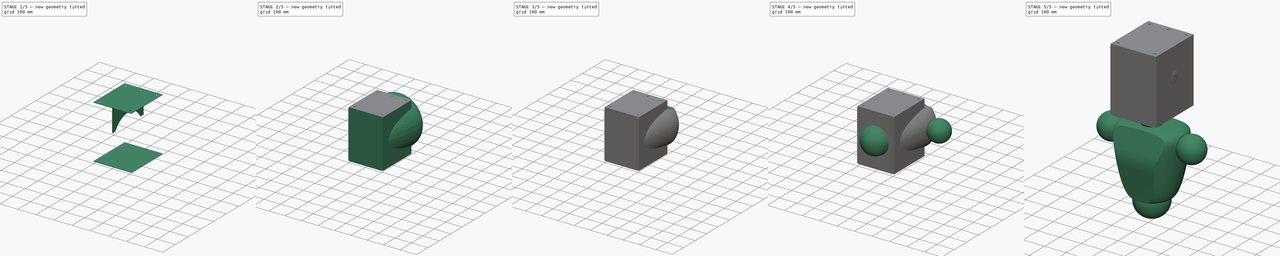
[diagram: build sequence overview — one tinted view per stage of 5, left to right]
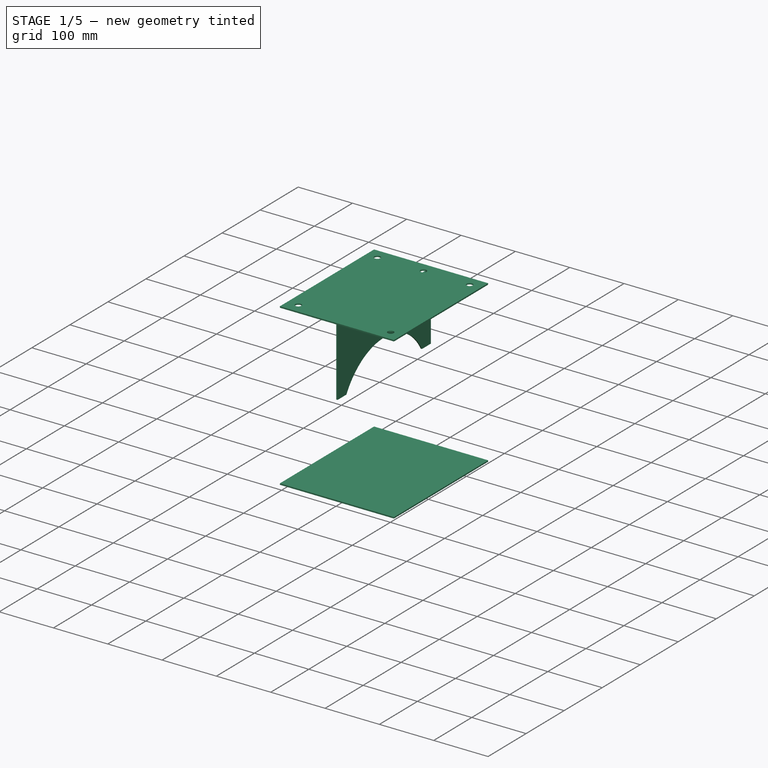
[diagram: stage 1 of 5 — iso view after this stage's code; geometry added in this stage tinted green]
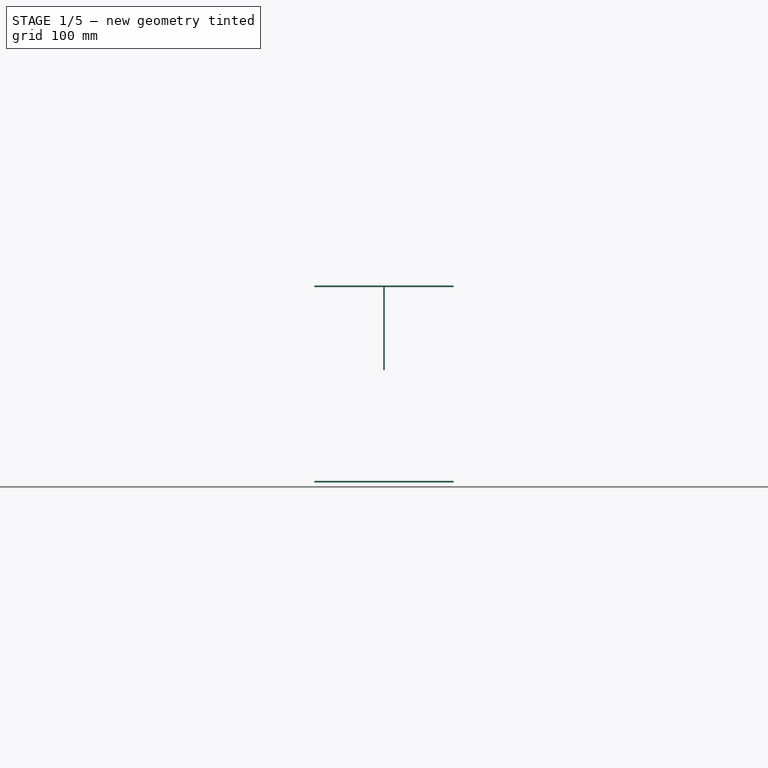
[diagram: stage 1 of 5 — front view after this stage's code; geometry added in this stage tinted green]
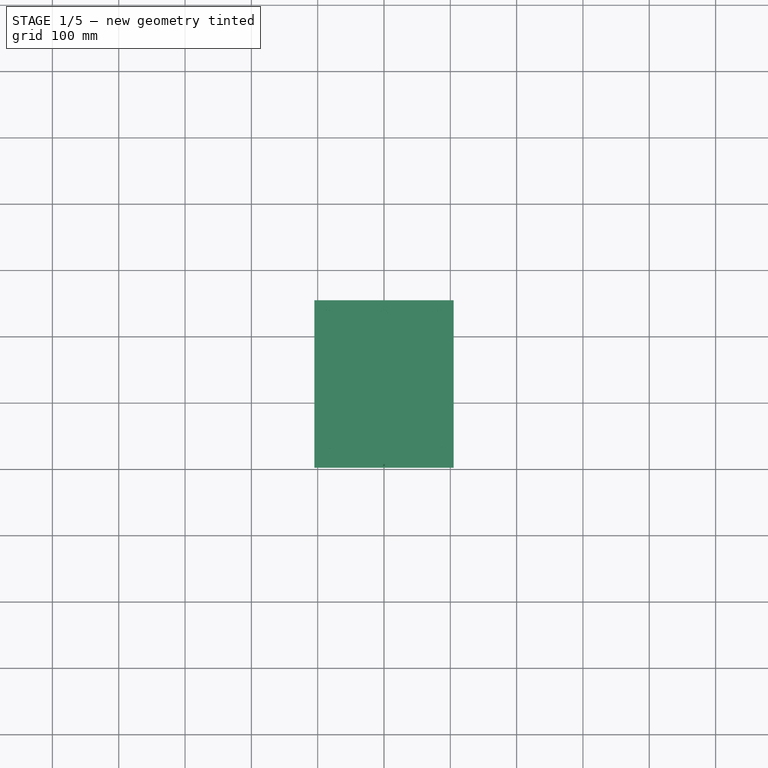
[diagram: stage 1 of 5 — top view after this stage's code; geometry added in this stage tinted green]
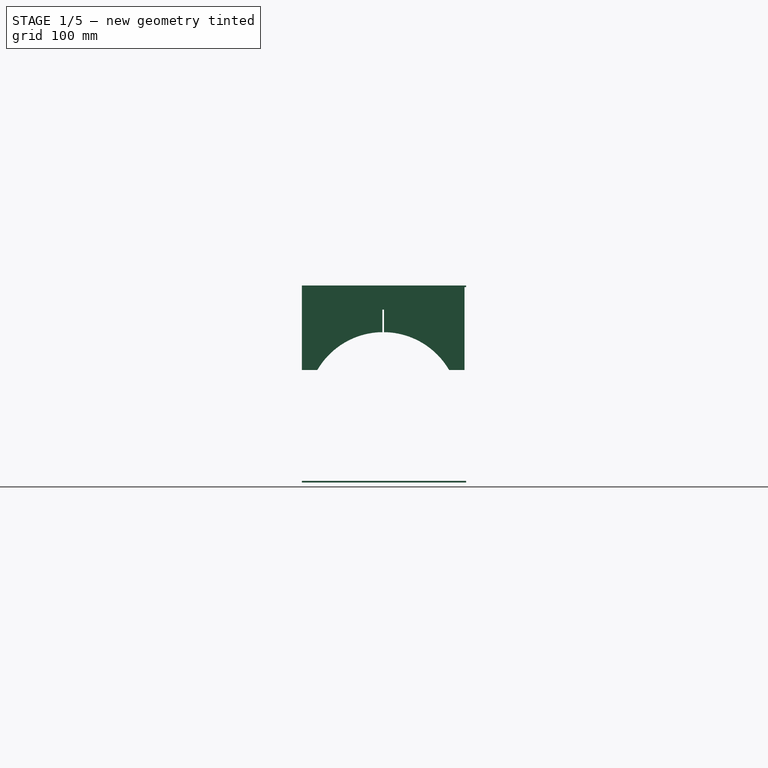
[diagram: stage 1 of 5 — right view after this stage's code; geometry added in this stage tinted green]
FCSTD DOCUMENT  (FreeCAD 1.0R39319 (Git))
Label: magnificator_02_2_4
License: CERN Open Hardware Licence permissive
LicenseURL: https://cern-ohl.web.cern.ch/
objects: Sketcher::SketchObject×19, PartDesign::Body×10, PartDesign::Pad×8, PartDesign::Plane×6, PartDesign::Revolution×5, PartDesign::CoordinateSystem×5, PartDesign::Pocket×5, PartDesign::Groove×4, PartDesign::Fillet×4, Part::MultiFuse×1, App::VarSet×1, PartDesign::SubShapeBinder×1
note: 139 computed .brp shape members not serialized (recipe doc carries the construction recipe); baked Part::Feature solids carry a one-line shape summary decoded from their .brp

FEATURE [PartDesign::Body] Body023  label="Body_right"
  AllowCompound = false
  Group = -> [DatumPlane002,Sketch072,Pad003]
  Origin = -> Origin025
  Tip = -> Pad003
FEATURE [PartDesign::Plane] DatumPlane003
  AttachmentOffset = pos=(0,0,148.5) rot=(0,0,1;0rad)
  AttachmentSupport = -> [XY_Plane026]
  Length = 258.062
  MapMode = 5
  Placement = pos=(0,0,148.5) rot=(0,0,1;0rad)
  ResizeMode = 0
  Width = 323.062
  expr: .AttachmentOffset.Base.z = VarSet.box_high_outside / 2
FEATURE [Sketcher::SketchObject] Sketch073
  ArcFitTolerance = 1e-06
  AttachmentSupport = -> [DatumPlane003]
  FullyConstrained = true
  MakeInternals = false
  MapMode = 5
  Placement = pos=(0,0,148.5) rot=(0,0,1;0rad)
  expr: Constraints[10] = VarSet.box_deep_outside
  expr: Constraints[7] = VarSet.box_wide_outside
  expr: Constraints[8] = VarSet.box_deep_outside - VarSet.foam_thick
  sketch-geometry (4):
    g0: LineSegment StartX=-105 StartY=250 StartZ=0 EndX=-105 EndY=2.4 EndZ=0
    g1: LineSegment StartX=-105 StartY=2.4 StartZ=0 EndX=105 EndY=2.4 EndZ=0
    g2: LineSegment StartX=105 StartY=2.4 StartZ=0 EndX=105 EndY=250 EndZ=0
    g3: LineSegment StartX=105 StartY=250 StartZ=0 EndX=-105 EndY=250 EndZ=0
  constraints (11):
    c: Coincident(g0,g1)
    c: Coincident(g1,g2)
    c: Coincident(g2,g3)
    c: Coincident(g3,g0)
    c: Vertical(g0)
    c: Vertical(g2)
    c: Horizontal(g3)
    c: DistanceX(g3,g3) = 210
    c: DistanceY(g2,g2) = 247.6
    c: Symmetric(g0,g1,g-2)
    c: Distance(g0,g-1) = 250
FEATURE [PartDesign::Pad] Pad004
  Direction = (0,0,1)
  Length = 2.4
  Length2 = 10
  Placement = pos=(0,0,148.5) rot=(0,0,1;0rad)
  Profile = -> Sketch073
  ReferenceAxis = -> Sketch073 [N_Axis]
  Refine = true
  Reversed = true
  Suppressed = false
  Type = 0
  expr: Length = VarSet.foam_thick
FEATURE [PartDesign::Plane] DatumPlane004
  AttachmentOffset = pos=(0,0,-148.5) rot=(0,0,1;0rad)
  AttachmentSupport = -> [XY_Plane027]
  Length = 258.062
  MapMode = 5
  Placement = pos=(0,0,-148.5) rot=(0,0,1;0rad)
  ResizeMode = 0
  Width = 323.062
  expr: .AttachmentOffset.Base.z = -VarSet.box_high_outside / 2
FEATURE [Sketcher::SketchObject] Sketch074
  ArcFitTolerance = 1e-06
  AttachmentSupport = -> [DatumPlane004]
  FullyConstrained = true
  MakeInternals = false
  MapMode = 5
  Placement = pos=(0,0,-148.5) rot=(0,0,1;0rad)
  expr: Constraints[10] = VarSet.box_deep_outside
  expr: Constraints[7] = VarSet.box_wide_outside
  expr: Constraints[8] = VarSet.box_deep_outside - VarSet.foam_thick
  sketch-geometry (4):
    g0: LineSegment StartX=-105 StartY=250 StartZ=0 EndX=-105 EndY=2.4 EndZ=0
    g1: LineSegment StartX=-105 StartY=2.4 StartZ=0 EndX=105 EndY=2.4 EndZ=0
    g2: LineSegment StartX=105 StartY=2.4 StartZ=0 EndX=105 EndY=250 EndZ=0
    g3: LineSegment StartX=105 StartY=250 StartZ=0 EndX=-105 EndY=250 EndZ=0
  constraints (11):
    c: Coincident(g0,g1)
    c: Coincident(g1,g2)
    c: Coincident(g2,g3)
    c: Coincident(g3,g0)
    c: Vertical(g0)
    c: Vertical(g2)
    c: Horizontal(g3)
    c: DistanceX(g3,g3) = 210
    c: DistanceY(g0,g0) = 247.6
    c: Symmetric(g0,g1,g-2)
    c: DistanceY(g-1,g0) = 250
FEATURE [PartDesign::Pad] Pad005
  Direction = (0,0,1)
  Length = 2.4
  Length2 = 10
  Placement = pos=(0,0,-148.5) rot=(0,0,1;0rad)
  Profile = -> Sketch074
  ReferenceAxis = -> Sketch074 [N_Axis]
  Refine = true
  Suppressed = false
  Type = 0
  expr: Length = VarSet.foam_thick
FEATURE [PartDesign::Body] Body025  label="Body_bot"
  AllowCompound = false
  Group = -> [DatumPlane004,Sketch074,Pad005,Sketch076,Pocket]
  Origin = -> Origin027
  Tip = -> Pocket
FEATURE [PartDesign::Plane] DatumPlane005
  AttachmentOffset = pos=(0,0,-125) rot=(0,0,1;0rad)
  AttachmentSupport = -> [XZ_Plane028]
  Length = 242.675
  MapMode = 5
  Placement = pos=(0,125,-2.78e-14) rot=(1,0,0;1.5708rad)
  ResizeMode = 0
  Width = 208.575
  expr: .AttachmentOffset.Base.z = -VarSet.box_deep_outside / 2
FEATURE [Sketcher::SketchObject] Sketch077
  ArcFitTolerance = 1e-06
  AttachmentSupport = -> [DatumPlane005]
  FullyConstrained = true
  MakeInternals = false
  MapMode = 5
  Placement = pos=(0,125,-2.78e-14) rot=(1,0,0;1.5708rad)
  expr: Constraints[1] = VarSet.box_wide_outside - VarSet.foam_thick - VarSet.foam_thick
  expr: Constraints[29] = VarSet.foam_thick
  expr: Constraints[2] = VarSet.box_high_outside / 2 - VarSet.foam_thick
  sketch-geometry (13):
    g0: LineSegment StartX=-102.6 StartY=146.1 StartZ=0 EndX=-1.2 EndY=146.1 EndZ=0
    g1: LineSegment StartX=-102.6 StartY=146.1 StartZ=0 EndX=-102.6 EndY=21.1 EndZ=0
    g2: LineSegment StartX=102.6 StartY=146.1 StartZ=0 EndX=102.6 EndY=21.1 EndZ=0
    g3: ArcOfCircle CenterX=8e-16 CenterY=-16.6524 CenterZ=0 NormalX=0 NormalY=0 NormalZ=1 AngleXU=0 Radius=100 StartAngle=0.38712 EndAngle=1.2454
    g4: LineSegment StartX=-102.6 StartY=21.1 StartZ=0 EndX=-92.6 EndY=21.1 EndZ=0
    g5: LineSegment StartX=102.6 StartY=21.1 StartZ=0 EndX=92.6 EndY=21.1 EndZ=0
    g6: LineSegment StartX=-31.9686 StartY=78.1 StartZ=0 EndX=31.9686 EndY=78.1 EndZ=0
    g7: ArcOfCircle CenterX=8e-16 CenterY=-16.6524 CenterZ=0 NormalX=0 NormalY=0 NormalZ=1 AngleXU=0 Radius=100 StartAngle=1.89619 EndAngle=2.75447
    g8: LineSegment StartX=-1.2 StartY=146.1 StartZ=0 EndX=-1.2 EndY=112.1 EndZ=0
    g9: LineSegment StartX=-1.2 StartY=112.1 StartZ=0 EndX=1.2 EndY=112.1 EndZ=0
    g10: LineSegment StartX=1.2 StartY=112.1 StartZ=0 EndX=1.2 EndY=146.1 EndZ=0
    g11: LineSegment StartX=1.2 StartY=146.1 StartZ=0 EndX=102.6 EndY=146.1 EndZ=0
    g12: LineSegment [constr] StartX=-1.2 StartY=112.1 StartZ=0 EndX=-1.2 EndY=78.1 EndZ=0
  constraints (40):
    c: Symmetric(g0,g11,g-2)
    c: DistanceX(g0,g11) = 205.2
    c: Distance(g0,g-1) = 146.1
    c: Distance(g1) = 125
    c: Coincident(g1,g0)
    c: Vertical(g1)
    c: Coincident(g2,g11)
    c: Vertical(g2)
    c: Equal(g2,g1)
    c: Radius(g3) = 100
    c: Coincident(g4,g1)
    c: Coincident(g4,g7)
    c: Coincident(g5,g2)
    c: Coincident(g5,g3)
    c: Horizontal(g5)
    c: Horizontal(g4)
    c: Equal(g4,g5)
    c: Distance(g4,g4) = 10
    c: Horizontal(g6)
    c: PointOnObject(g6,g7)
    c: Equal(g3,g7)
    c: Coincident(g3,g6)
    c: PointOnObject(g7,g6)
    c: Coincident(g3,g7)
    c: Coincident(g8,g9)
    c: Coincident(g9,g10)
    c: Vertical(g8)
    c: Vertical(g10)
    c: PointOnObject(g10,g11)
    c: Distance(g9,g9) = 2.4
    c: Symmetric(g8,g9,g-2)
    c: Coincident(g0,g8)
    c: PointOnObject(g11,g10)
    c: Horizontal(g0)
    c: Horizontal(g11)
    c: DistanceY(g6,g0) = 68
    c: Coincident(g12,g8)
    c: PointOnObject(g12,g6)
    c: Vertical(g12)
    c: Equal(g12,g8)
FEATURE [PartDesign::Pad] Pad006
  Direction = (0,-1,2e-16)
  Length = 2.4
  Length2 = 10
  Midplane = true
  Placement = pos=(0,125,-2.78e-14) rot=(1,0,0;1.5708rad)
  Profile = -> Sketch077
  ReferenceAxis = -> Sketch077 [N_Axis]
  Refine = true
  Suppressed = false
  Type = 0
  expr: Length = VarSet.foam_thick
FEATURE [PartDesign::Body] Body026  label="Body_braceX"
  AllowCompound = false
  Group = -> [DatumPlane005,Sketch077,Pad006]
  Origin = -> Origin028
  Tip = -> Pad006
FEATURE [PartDesign::SubShapeBinder] Binder
  BindCopyOnChange = 0
  BindMode = 0
  ClaimChildren = false
  Context = -> Body027 [Binder.]
  Fuse = false
  MakeFace = true
  OffsetFill = false
  OffsetIntersection = false
  OffsetJoinType = 0
  OffsetOpenResult = false
  PartialLoad = false
  Refine = true
  Relative = true
  Support = -> [Body026]
  _Version = 2
FEATURE [Sketcher::SketchObject] Sketch078
  ArcFitTolerance = 1e-06
  AttachmentSupport = -> [YZ_Plane029]
  ExternalGeometry = -> [Binder]
  FullyConstrained = true
  MakeInternals = false
  MapMode = 5
  Placement = pos=(0,0,0) rot=(0.57735,0.57735,0.57735;2.0944rad)
  expr: Constraints[1] = VarSet.box_deep_outside - VarSet.foam_thick - VarSet.foam_thick
  expr: Constraints[2] = VarSet.box_high_outside / 2 - VarSet.foam_thick
  expr: Constraints[31] = VarSet.foam_thick
  expr: Constraints[3] = VarSet.box_deep_outside - VarSet.foam_thick
  sketch-geometry (12):
    g0: LineSegment StartX=2.4 StartY=146.1 StartZ=0 EndX=247.6 EndY=146.1 EndZ=0
    g1: LineSegment StartX=247.6 StartY=146.1 StartZ=0 EndX=247.6 EndY=21.1 EndZ=0
    g2: LineSegment StartX=2.4 StartY=146.1 StartZ=0 EndX=2.4 EndY=21.1 EndZ=0
    g3: ArcOfCircle CenterX=125 CenterY=-36.7913 CenterZ=0 NormalX=0 NormalY=0 NormalZ=1 AngleXU=0 Radius=115 StartAngle=0.527532 EndAngle=1.5273
    g4: LineSegment StartX=25.634 StartY=21.1 StartZ=0 EndX=2.4 EndY=21.1 EndZ=0
    g5: LineSegment StartX=247.6 StartY=21.1 StartZ=0 EndX=224.366 EndY=21.1 EndZ=0
    g6: LineSegment StartX=120 StartY=78.1 StartZ=0 EndX=123.8 EndY=78.1 EndZ=0
    g7: ArcOfCircle CenterX=125 CenterY=-36.7913 CenterZ=0 NormalX=0 NormalY=0 NormalZ=1 AngleXU=0 Radius=115 StartAngle=1.61429 EndAngle=2.61406
    g8: LineSegment StartX=126.2 StartY=78.1 StartZ=0 EndX=126.2 EndY=112.1 EndZ=0
    g9: LineSegment StartX=126.2 StartY=112.1 StartZ=0 EndX=123.8 EndY=112.1 EndZ=0
    g10: LineSegment StartX=123.8 StartY=112.1 StartZ=0 EndX=123.8 EndY=78.1 EndZ=0
    g11: LineSegment StartX=126.2 StartY=78.1 StartZ=0 EndX=130 EndY=78.1 EndZ=0
  constraints (38):
    c: Horizontal(g0)
    c: DistanceX(g0,g0) = 245.2
    c: DistanceY(g-1,g0) = 146.1
    c: Distance(g0,g-2) = 247.6
    c: Coincident(g1,g0)
    c: Vertical(g1)
    c: Coincident(g2,g0)
    c: Vertical(g2)
    c: Equal(g2,g1)
    c: DistanceY(g2,g2) = 125
    c: Radius(g3) = 115
    c: Coincident(g4,g7)
    c: Coincident(g4,g2)
    c: Coincident(g5,g1)
    c: Coincident(g5,g3)
    c: Horizontal(g5)
    c: Horizontal(g4)
    c: Equal(g4,g5)
    c: Horizontal(g6)
    c: PointOnObject(g6,g7)
    c: Equal(g3,g7)
    c: Coincident(g3,g11)
    c: PointOnObject(g7,g6)
    c: Coincident(g3,g7)
    c: Coincident(g8,g9)
    c: Coincident(g9,g10)
    c: Horizontal(g9)
    c: Vertical(g8)
    c: Vertical(g10)
    c: PointOnObject(g8,g11)
    c: PointOnObject(g9,g-3)
    c: Distance(g9,g9) = 2.4
    c: PointOnObject(g11,g8)
    c: Coincident(g6,g-4)
    c: Horizontal(g11)
    c: Coincident(g6,g10)
    c: Equal(g10,g8)
    c: DistanceX(g6,g3) = 10
FEATURE [PartDesign::Pad] Pad007
  Direction = (1,0,0)
  Length = 2.4
  Length2 = 10
  Midplane = true
  Placement = pos=(0,0,0) rot=(1,1,1;2.0944rad)
  Profile = -> Sketch078
  ReferenceAxis = -> Sketch078 [N_Axis]
  Refine = true
  Suppressed = false
  Type = 0
  expr: Length = VarSet.foam_thick
FEATURE [PartDesign::Body] Body027  label="Body_braceY"
  AllowCompound = false
  Group = -> [Sketch078,Pad007,Binder]
  Origin = -> Origin029
  Tip = -> Pad007
FEATURE [Sketcher::SketchObject] Sketch079
  ArcFitTolerance = 1e-06
  AttachmentSupport = -> [Pad004]
  ExternalGeometry = -> [Pad004]
  FullyConstrained = true
  MakeInternals = false
  MapMode = 5
  Placement = pos=(0,0,148.5) rot=(0,0,1;0rad)
  sketch-geometry (8):
    g0: Circle CenterX=-85 CenterY=230 CenterZ=0 NormalX=0 NormalY=0 NormalZ=1 AngleXU=0 Radius=5.5
    g1: Circle CenterX=0 CenterY=230 CenterZ=0 NormalX=0 NormalY=0 NormalZ=1 AngleXU=0 Radius=5.5
    g2: Circle CenterX=85 CenterY=230 CenterZ=0 NormalX=0 NormalY=0 NormalZ=1 AngleXU=0 Radius=5.5
    g3: Circle CenterX=85 CenterY=22.4 CenterZ=0 NormalX=0 NormalY=0 NormalZ=1 AngleXU=0 Radius=5.5
    g4: Circle CenterX=-85 CenterY=22.4 CenterZ=0 NormalX=0 NormalY=0 NormalZ=1 AngleXU=0 Radius=5.5
    g5: LineSegment [constr] StartX=-85 StartY=230 StartZ=0 EndX=-85 EndY=250 EndZ=0
    g6: LineSegment [constr] StartX=-85 StartY=230 StartZ=0 EndX=-105 EndY=230 EndZ=0
    g7: LineSegment [constr] StartX=-85 StartY=22.4 StartZ=0 EndX=-85 EndY=2.4 EndZ=0
  constraints (22):
    c: PointOnObject(g1,g-2)
    c: Equal(g4,g3)
    c: Equal(g3,g2)
    c: Equal(g2,g1)
    c: Equal(g1,g0)
    c: Diameter(g0) = 11
    c: Horizontal(g0,g1)
    c: Symmetric(g0,g2,g-2)
    c: Symmetric(g4,g3,g-2)
    c: Vertical(g4,g0)
    c: Coincident(g5,g0)
    c: PointOnObject(g5,g-3)
    c: Vertical(g5)
    c: Coincident(g6,g0)
    c: PointOnObject(g6,g-4)
    c: Horizontal(g6)
    c: Equal(g5,g6)
    c: Coincident(g7,g4)
    c: Vertical(g7)
    c: Equal(g7,g5)
    c: DistanceY(g5,g5) = 20
    c: Horizontal(g7,g-4)
FEATURE [PartDesign::Pocket] Pocket012
  BaseFeature = -> Pad004
  Direction = (0,0,-1)
  Length = 5
  Length2 = 5
  Placement = pos=(0,0,148.5) rot=(0,0,1;0rad)
  Profile = -> Sketch079
  ReferenceAxis = -> Sketch079 [N_Axis]
  Refine = true
  Suppressed = false
  Type = 1
FEATURE [PartDesign::Body] Body024  label="Body_top"
  AllowCompound = false
  Group = -> [DatumPlane003,Sketch073,Pad004,Sketch079,Pocket012]
  Origin = -> Origin026
  Tip = -> Pocket012
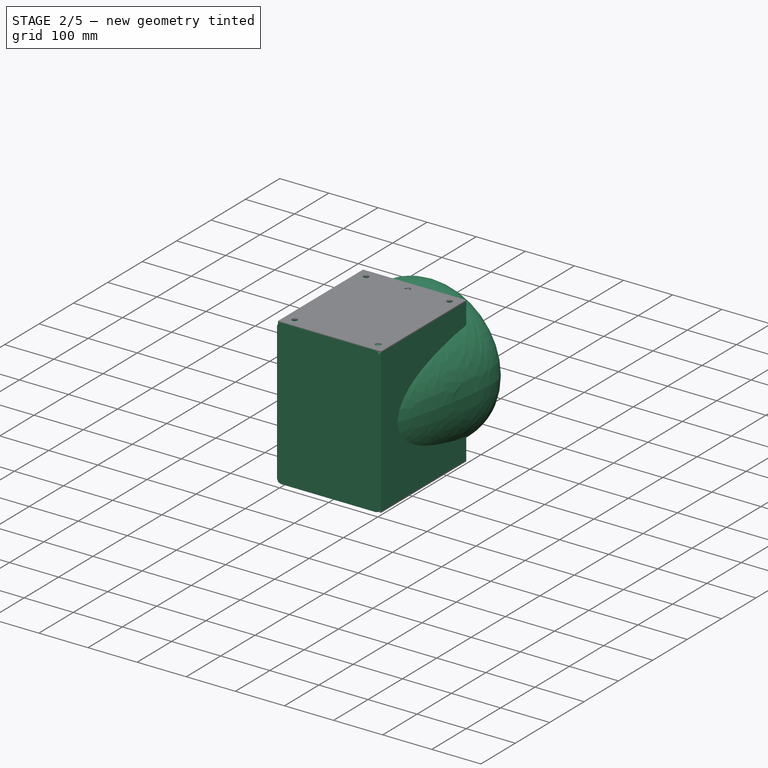
[diagram: stage 2 of 5 — iso view after this stage's code; geometry added in this stage tinted green]
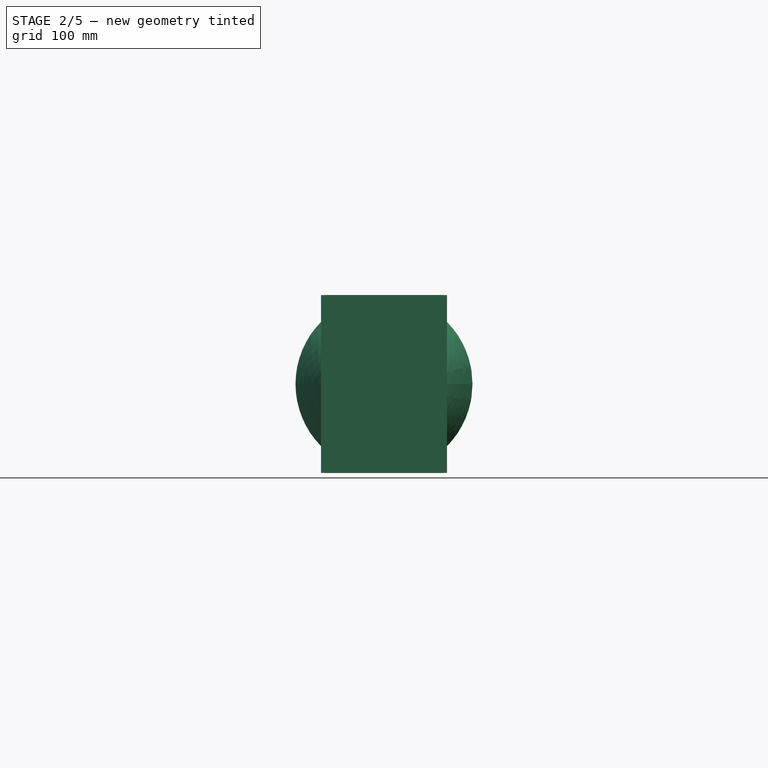
[diagram: stage 2 of 5 — front view after this stage's code; geometry added in this stage tinted green]
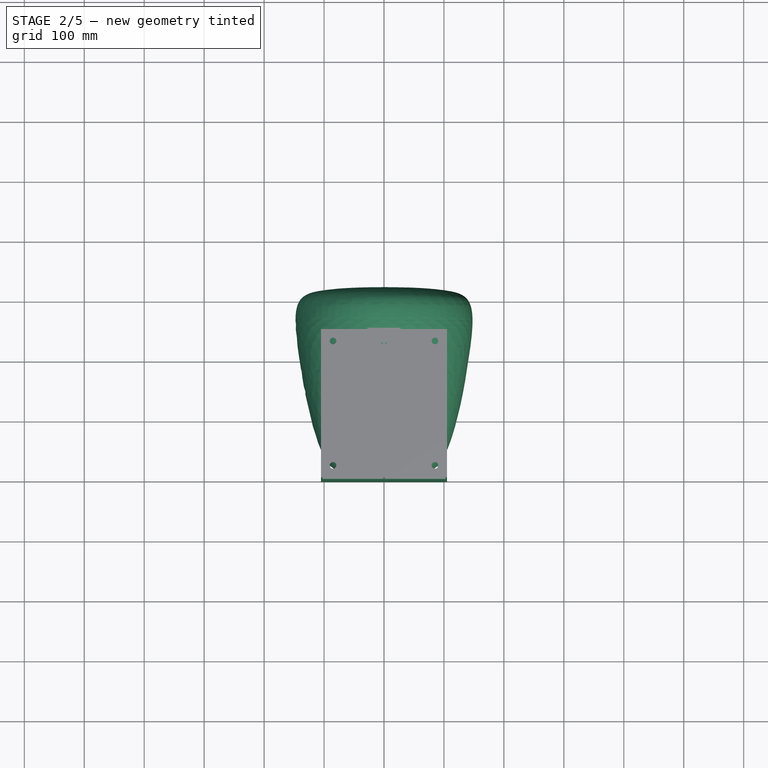
[diagram: stage 2 of 5 — top view after this stage's code; geometry added in this stage tinted green]
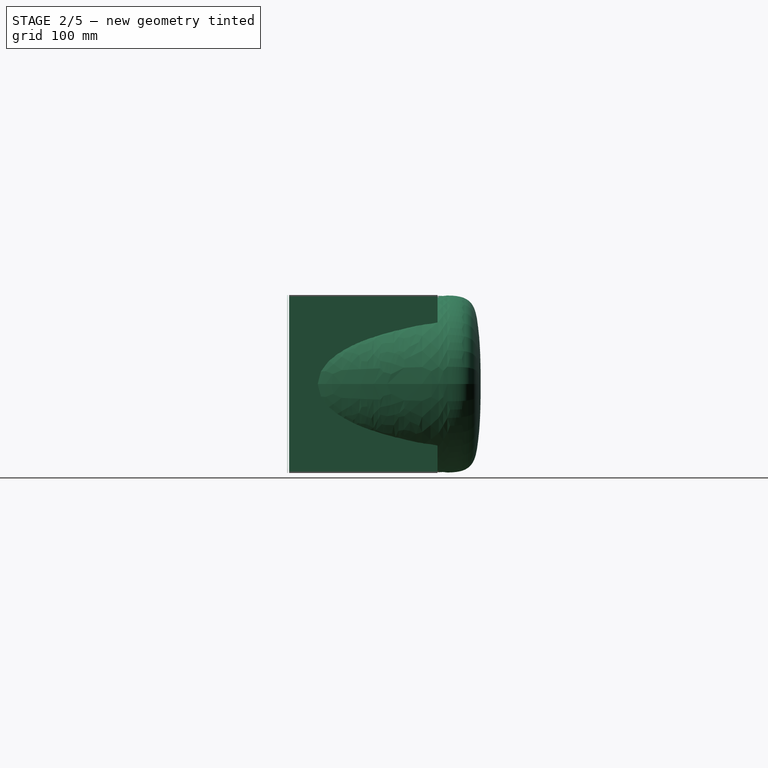
[diagram: stage 2 of 5 — right view after this stage's code; geometry added in this stage tinted green]
FEATURE [PartDesign::CoordinateSystem] Local_CS033  label="Head/Neck LCS"
  AttacherType = Attacher::AttachEngine3D
  AttachmentSupport = -> [Revolution033]
  MapMode = 2
FEATURE [Sketcher::SketchObject] Sketch062
  ArcFitTolerance = 0
  AttachmentSupport = -> [XY_Plane022]
  FullyConstrained = true
  MakeInternals = false
  MapMode = 5
  sketch-geometry (18):
    g0: LineSegment StartX=0 StartY=322.019 StartZ=0 EndX=0 EndY=20.3719 EndZ=0
    g1-g9: Circle [constr] x9 (B-spline internal-alignment scaffolding for g10; pole/knot coordinates omitted)
    g10: BSplineCurve PolesCount=9 KnotsCount=7 Degree=3 IsPeriodic=0
    g11-g17: GeomPoint [constr] x7 (B-spline internal-alignment scaffolding for g10; pole/knot coordinates omitted)
  constraints (12):
    c: Vertical(g0)
    c: PointOnObject(g0,g-2)
    c: Weight(g1) = 1
    c: Coincident(g10,g0)
    c: Equal(g1, g2-g9) x8
    c: Coincident(g10,g0)
    c: InternalAlignment(g1-g9 -> g10) x9
    c: InternalAlignment(g11-g17 -> g10) x7
    c: Horizontal(g0,g2)
    c: Horizontal(g0,g8)
    c: Block(g0)
    c: Block(g10)
FEATURE [PartDesign::Revolution] Revolution034  label="Base shape"
  Angle = 360
  Angle2 = 60
  Axis = (0,1,0)
  Base = (0,0,0)
  Profile = -> Sketch062
  ReferenceAxis = -> Sketch062 [V_Axis]
  Reversed = true
  Suppressed = false
  Type = 0
FEATURE [Sketcher::SketchObject] Sketch
  ArcFitTolerance = 1e-06
  AttachmentSupport = -> [XZ_Plane]
  FullyConstrained = true
  MakeInternals = false
  MapMode = 5
  Placement = pos=(0,0,0) rot=(1,0,0;1.5708rad)
  sketch-geometry (10):
    g0: LineSegment StartX=-95 StartY=-148.5 StartZ=0 EndX=95 EndY=-148.5 EndZ=0
    g1: LineSegment StartX=105 StartY=-138.5 StartZ=0 EndX=105 EndY=138.5 EndZ=0
    g2: LineSegment StartX=95 StartY=148.5 StartZ=0 EndX=-95 EndY=148.5 EndZ=0
    g3: LineSegment StartX=-105 StartY=138.5 StartZ=0 EndX=-105 EndY=-138.5 EndZ=0
    g4: ArcOfCircle CenterX=-95 CenterY=-138.5 CenterZ=0 NormalX=0 NormalY=0 NormalZ=1 AngleXU=0 Radius=10 StartAngle=3.14159 EndAngle=4.71239
    g5: ArcOfCircle CenterX=95 CenterY=-138.5 CenterZ=0 NormalX=0 NormalY=0 NormalZ=1 AngleXU=0 Radius=10 StartAngle=4.71239 EndAngle=6.28319
    g6: ArcOfCircle CenterX=95 CenterY=138.5 CenterZ=0 NormalX=0 NormalY=0 NormalZ=1 AngleXU=0 Radius=10 StartAngle=0 EndAngle=1.5708
    g7: ArcOfCircle CenterX=-95 CenterY=138.5 CenterZ=0 NormalX=0 NormalY=0 NormalZ=1 AngleXU=0 Radius=10 StartAngle=1.5708 EndAngle=3.14159
    g8: GeomPoint [constr] X=105 Y=148.5 Z=0
    g9: GeomPoint [constr] X=0 Y=0 Z=0
  constraints (22):
    c: Tangent(g0,g4) = -1.5708
    c: Tangent(g0,g5) = -1.5708
    c: Tangent(g1,g5) = -1.5708
    c: Tangent(g1,g6) = -1.5708
    c: Tangent(g2,g6) = -1.5708
    c: Tangent(g2,g7) = -1.5708
    c: Tangent(g3,g7) = -1.5708
    c: Tangent(g3,g4) = -1.5708
    c: Horizontal(g0)
    c: Horizontal(g2)
    c: Vertical(g1)
    c: Vertical(g3)
    c: Equal(g4,g5)
    c: Equal(g5,g6)
    c: Equal(g6,g7)
    c: Symmetric(g2,g0,g9)
    c: PointOnObject(g8,g1)
    c: PointOnObject(g8,g2)
    c: Distance(g1,g3) = 210
    c: Distance(g0,g2) = 297
    c: Radius(g5) = 10
    c: Coincident(g9,g-1)
FEATURE [PartDesign::Pad] Pad
  Direction = (0,-1,2e-16)
  Length = 0.5
  Length2 = 10
  Placement = pos=(0,0,0) rot=(1,0,0;1.5708rad)
  Profile = -> Sketch
  ReferenceAxis = -> Sketch [N_Axis]
  Refine = true
  Suppressed = false
  Type = 0
FEATURE [PartDesign::Body] Body  label="Fresnel_A4"
  AllowCompound = false
  Group = -> [Sketch,Pad]
  Origin = -> Origin
  Tip = -> Pad
FEATURE [PartDesign::Plane] DatumPlane
  AttachmentOffset = pos=(0,0,-250) rot=(0,0,1;0rad)
  AttachmentSupport = -> [XZ_Plane023]
  Length = 259.543
  MapMode = 5
  Placement = pos=(0,250,-5.55e-14) rot=(1,0,0;1.5708rad)
  ResizeMode = 0
  Width = 341.743
  expr: .AttachmentOffset.Base.z = -VarSet.box_deep_outside
FEATURE [Sketcher::SketchObject] Sketch070
  ArcFitTolerance = 1e-06
  AttachmentSupport = -> [DatumPlane]
  FullyConstrained = true
  MakeInternals = false
  MapMode = 5
  Placement = pos=(0,250,-5.55e-14) rot=(1,0,0;1.5708rad)
  expr: Constraints[10] = VarSet.box_high_outside - VarSet.foam_thick - VarSet.foam_thick
  expr: Constraints[9] = VarSet.box_wide_outside
  sketch-geometry (5):
    g0: LineSegment StartX=-105 StartY=-146.1 StartZ=0 EndX=105 EndY=-146.1 EndZ=0
    g1: LineSegment StartX=105 StartY=-146.1 StartZ=0 EndX=105 EndY=146.1 EndZ=0
    g2: LineSegment StartX=105 StartY=146.1 StartZ=0 EndX=-105 EndY=146.1 EndZ=0
    g3: LineSegment StartX=-105 StartY=146.1 StartZ=0 EndX=-105 EndY=-146.1 EndZ=0
    g4: GeomPoint [constr] X=0 Y=0 Z=0
  constraints (12):
    c: Coincident(g0,g1)
    c: Coincident(g1,g2)
    c: Coincident(g2,g3)
    c: Coincident(g3,g0)
    c: Horizontal(g0)
    c: Horizontal(g2)
    c: Vertical(g1)
    c: Vertical(g3)
    c: Symmetric(g2,g0,g4)
    c: Distance(g1,g3) = 210
    c: Distance(g0,g2) = 292.2
    c: Coincident(g4,g-1)
FEATURE [App::VarSet] VarSet
  box_deep_outside = 250
  box_high_outside = 297
  box_wide_outside = 210
  foam_thick = 2.4
FEATURE [PartDesign::Pad] Pad001
  Direction = (0,-1,2e-16)
  Length = 2.4
  Length2 = 10
  Placement = pos=(0,250,-5.55e-14) rot=(1,0,0;1.5708rad)
  Profile = -> Sketch070
  ReferenceAxis = -> Sketch070 [N_Axis]
  Refine = true
  Suppressed = false
  Type = 0
  expr: Length = VarSet.foam_thick
FEATURE [PartDesign::Body] Body021  label="Body_back"
  AllowCompound = false
  Group = -> [DatumPlane,Sketch070,Pad001]
  Origin = -> Origin023
  Tip = -> Pad001
FEATURE [PartDesign::Plane] DatumPlane001
  AttachmentOffset = pos=(0,0,105) rot=(0,0,1;0rad)
  AttachmentSupport = -> [YZ_Plane024]
  Length = 329.046
  MapMode = 5
  Placement = pos=(105,0,0) rot=(0.57735,0.57735,0.57735;2.0944rad)
  ResizeMode = 0
  Width = 348.646
  expr: .AttachmentOffset.Base.z = VarSet.box_wide_outside / 2
FEATURE [Sketcher::SketchObject] Sketch071
  ArcFitTolerance = 1e-06
  AttachmentSupport = -> [DatumPlane001]
  FullyConstrained = true
  MakeInternals = false
  MapMode = 5
  Placement = pos=(105,0,0) rot=(0.57735,0.57735,0.57735;2.0944rad)
  expr: Constraints[10] = VarSet.box_deep_outside - VarSet.foam_thick
  expr: Constraints[7] = VarSet.box_deep_outside - VarSet.foam_thick - VarSet.foam_thick
  expr: Constraints[8] = VarSet.box_high_outside - VarSet.foam_thick - VarSet.foam_thick
  sketch-geometry (4):
    g0: LineSegment StartX=247.6 StartY=146.1 StartZ=0 EndX=2.4 EndY=146.1 EndZ=0
    g1: LineSegment StartX=2.4 StartY=146.1 StartZ=0 EndX=2.4 EndY=-146.1 EndZ=0
    g2: LineSegment StartX=2.4 StartY=-146.1 StartZ=0 EndX=247.6 EndY=-146.1 EndZ=0
    g3: LineSegment StartX=247.6 StartY=-146.1 StartZ=0 EndX=247.6 EndY=146.1 EndZ=0
  constraints (11):
    c: Coincident(g0,g1)
    c: Coincident(g1,g2)
    c: Coincident(g2,g3)
    c: Coincident(g3,g0)
    c: Horizontal(g0)
    c: Horizontal(g2)
    c: Vertical(g3)
    c: DistanceX(g2,g2) = 245.2
    c: DistanceY(g1,g1) = 292.2
    c: Symmetric(g0,g1,g-1)
    c: Distance(g2,g-2) = 247.6
FEATURE [PartDesign::Pad] Pad002
  Direction = (1,0,0)
  Length = 2.4
  Length2 = 10
  Placement = pos=(105,0,0) rot=(0.57735,0.57735,0.57735;2.0944rad)
  Profile = -> Sketch071
  ReferenceAxis = -> Sketch071 [N_Axis]
  Refine = true
  Reversed = true
  Suppressed = false
  Type = 0
  expr: Length = VarSet.foam_thick
FEATURE [PartDesign::Body] Body022  label="Body_left"
  AllowCompound = false
  Group = -> [DatumPlane001,Sketch071,Pad002]
  Origin = -> Origin024
  Tip = -> Pad002
FEATURE [PartDesign::Plane] DatumPlane002
  AttachmentOffset = pos=(0,0,-105) rot=(0,0,1;0rad)
  AttachmentSupport = -> [YZ_Plane025]
  Length = 329.046
  MapMode = 5
  Placement = pos=(-105,0,0) rot=(0.57735,0.57735,0.57735;2.0944rad)
  ResizeMode = 0
  Width = 348.646
  expr: .AttachmentOffset.Base.z = -VarSet.box_wide_outside / 2
FEATURE [Sketcher::SketchObject] Sketch072
  ArcFitTolerance = 1e-06
  AttachmentSupport = -> [DatumPlane002]
  FullyConstrained = true
  MakeInternals = false
  MapMode = 5
  Placement = pos=(-105,0,0) rot=(0.57735,0.57735,0.57735;2.0944rad)
  expr: Constraints[10] = VarSet.box_deep_outside - VarSet.foam_thick
  expr: Constraints[7] = VarSet.box_deep_outside - VarSet.foam_thick - VarSet.foam_thick
  expr: Constraints[8] = VarSet.box_high_outside - VarSet.foam_thick - VarSet.foam_thick
  sketch-geometry (4):
    g0: LineSegment StartX=2.4 StartY=146.1 StartZ=0 EndX=2.4 EndY=-146.1 EndZ=0
    g1: LineSegment StartX=2.4 StartY=-146.1 StartZ=0 EndX=247.6 EndY=-146.1 EndZ=0
    g2: LineSegment StartX=247.6 StartY=-146.1 StartZ=0 EndX=247.6 EndY=146.1 EndZ=0
    g3: LineSegment StartX=247.6 StartY=146.1 StartZ=0 EndX=2.4 EndY=146.1 EndZ=0
  constraints (11):
    c: Coincident(g0,g1)
    c: Coincident(g1,g2)
    c: Coincident(g2,g3)
    c: Coincident(g3,g0)
    c: Vertical(g2)
    c: Horizontal(g1)
    c: Horizontal(g3)
    c: DistanceX(g3,g3) = 245.2
    c: DistanceY(g0,g0) = 292.2
    c: Symmetric(g0,g0,g-1)
    c: Distance(g1,g-2) = 247.6
FEATURE [PartDesign::Pad] Pad003
  Direction = (1,0,0)
  Length = 2.4
  Length2 = 10
  Placement = pos=(-105,0,0) rot=(0.57735,0.57735,0.57735;2.0944rad)
  Profile = -> Sketch072
  ReferenceAxis = -> Sketch072 [N_Axis]
  Refine = true
  Suppressed = false
  Type = 0
  expr: Length = VarSet.foam_thick
FEATURE [Sketcher::SketchObject] Sketch076
  ArcFitTolerance = 1e-06
  AttachmentSupport = -> [Pad005]
  ExternalGeometry = -> [Pad005]
  FullyConstrained = true
  MakeInternals = false
  MapMode = 5
  Placement = pos=(0,0,-146.1) rot=(0,0,1;0rad)
  sketch-geometry (21):
    g0: LineSegment StartX=-40 StartY=20 StartZ=0 EndX=40 EndY=20 EndZ=0
    g1: LineSegment StartX=90 StartY=70 StartZ=0 EndX=90 EndY=170 EndZ=0
    g2: LineSegment StartX=40 StartY=220 StartZ=0 EndX=-40 EndY=220 EndZ=0
    g3: LineSegment StartX=-90 StartY=170 StartZ=0 EndX=-90 EndY=70 EndZ=0
    g4: ArcOfCircle CenterX=-40 CenterY=70 CenterZ=0 NormalX=0 NormalY=0 NormalZ=1 AngleXU=0 Radius=50 StartAngle=3.14159 EndAngle=4.71239
    g5: ArcOfCircle CenterX=40 CenterY=70 CenterZ=0 NormalX=0 NormalY=0 NormalZ=1 AngleXU=0 Radius=50 StartAngle=4.71239 EndAngle=6.28319
    g6: ArcOfCircle CenterX=40 CenterY=170 CenterZ=0 NormalX=0 NormalY=0 NormalZ=1 AngleXU=0 Radius=50 StartAngle=0 EndAngle=1.5708
    g7: ArcOfCircle CenterX=-40 CenterY=170 CenterZ=0 NormalX=0 NormalY=0 NormalZ=1 AngleXU=0 Radius=50 StartAngle=1.5708 EndAngle=3.14159
    g8: GeomPoint [constr] X=90 Y=220 Z=0
    g9: GeomPoint [constr] X=0 Y=120 Z=0
    g10: LineSegment [constr] StartX=-6.1e-15 StartY=250 StartZ=0 EndX=0 EndY=120 EndZ=0
    g11: LineSegment [constr] StartX=0 StartY=120 StartZ=0 EndX=0 EndY=0 EndZ=0
    g12: Circle CenterX=-85 CenterY=230 CenterZ=0 NormalX=0 NormalY=0 NormalZ=1 AngleXU=0 Radius=5.5
    g13: Circle CenterX=85 CenterY=230 CenterZ=0 NormalX=0 NormalY=0 NormalZ=1 AngleXU=0 Radius=5.5
    g14: Circle CenterX=-85 CenterY=22.4 CenterZ=0 NormalX=0 NormalY=0 NormalZ=1 AngleXU=0 Radius=5.5
    g15: Circle CenterX=85 CenterY=22.4 CenterZ=0 NormalX=0 NormalY=0 NormalZ=1 AngleXU=0 Radius=5.5
    g16: Circle CenterX=-5.2e-15 CenterY=230 CenterZ=0 NormalX=0 NormalY=0 NormalZ=1 AngleXU=0 Radius=5.5
    g17: LineSegment [constr] StartX=-85 StartY=230 StartZ=0 EndX=-85 EndY=250 EndZ=0
    g18: LineSegment [constr] StartX=-85 StartY=230 StartZ=0 EndX=-105 EndY=230 EndZ=0
    g19: LineSegment [constr] StartX=-85 StartY=22.4 StartZ=0 EndX=-85 EndY=2.4 EndZ=0
    g20: LineSegment [constr] StartX=-85 StartY=22.4 StartZ=0 EndX=-105 EndY=22.4 EndZ=0
  constraints (52):
    c: Tangent(g0,g4) = -1.5708
    c: Tangent(g0,g5) = -1.5708
    c: Tangent(g1,g5) = -1.5708
    c: Tangent(g1,g6) = -1.5708
    c: Tangent(g2,g6) = -1.5708
    c: Tangent(g2,g7) = -1.5708
    c: Tangent(g3,g7) = -1.5708
    c: Tangent(g3,g4) = -1.5708
    c: Horizontal(g0)
    c: Horizontal(g2)
    c: Vertical(g1)
    c: Vertical(g3)
    c: Equal(g4,g5)
    c: Equal(g5,g6)
    c: Equal(g6,g7)
    c: Symmetric(g2,g0,g9)
    c: PointOnObject(g8,g1)
    c: PointOnObject(g8,g2)
    c: Distance(g1,g3) = 180
    c: Distance(g0,g2) = 200
    c: Radius(g5) = 50
    c: PointOnObject(g9,g-2)
    c: Symmetric(g-3,g-3,g10)
    c: Coincident(g10,g9)
    c: Coincident(g11,g9)
    c: Coincident(g11,g-1)
    c: Distance(g11,g0) = 20
    c: PointOnObject(g16,g10)
    c: Equal(g14,g15)
    c: Equal(g15,g13)
    c: Equal(g13,g16)
    c: Equal(g16,g12)
    c: Diameter(g12) = 11
    c: Symmetric(g12,g13,g16)
    c: Vertical(g12,g14)
    c: Symmetric(g15,g14,g11)
    c: Horizontal(g12,g16)
    c: Coincident(g17,g12)
    c: PointOnObject(g17,g-3)
    c: Vertical(g17)
    c: Coincident(g18,g12)
    c: PointOnObject(g18,g-5)
    c: Horizontal(g18)
    c: Coincident(g19,g14)
    c: PointOnObject(g19,g-4)
    c: Vertical(g19)
    c: Coincident(g20,g14)
    c: PointOnObject(g20,g-5)
    c: Horizontal(g20)
    c: Equal(g19,g20)
    c: Equal(g18,g17)
    c: DistanceY(g17,g17) = 20
FEATURE [PartDesign::Pocket] Pocket
  BaseFeature = -> Pad005
  Direction = (0,0,-1)
  Length = 5
  Length2 = 5
  Placement = pos=(0,0,-148.5) rot=(0,0,1;0rad)
  Profile = -> Sketch076
  ReferenceAxis = -> Sketch076 [N_Axis]
  Refine = true
  Suppressed = false
  Type = 1
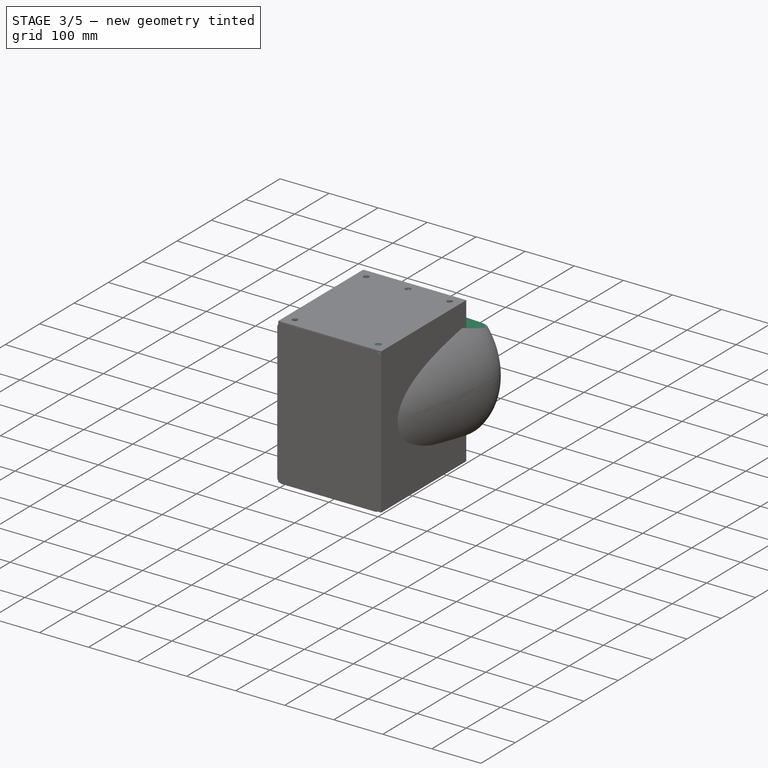
[diagram: stage 3 of 5 — iso view after this stage's code; geometry added in this stage tinted green]
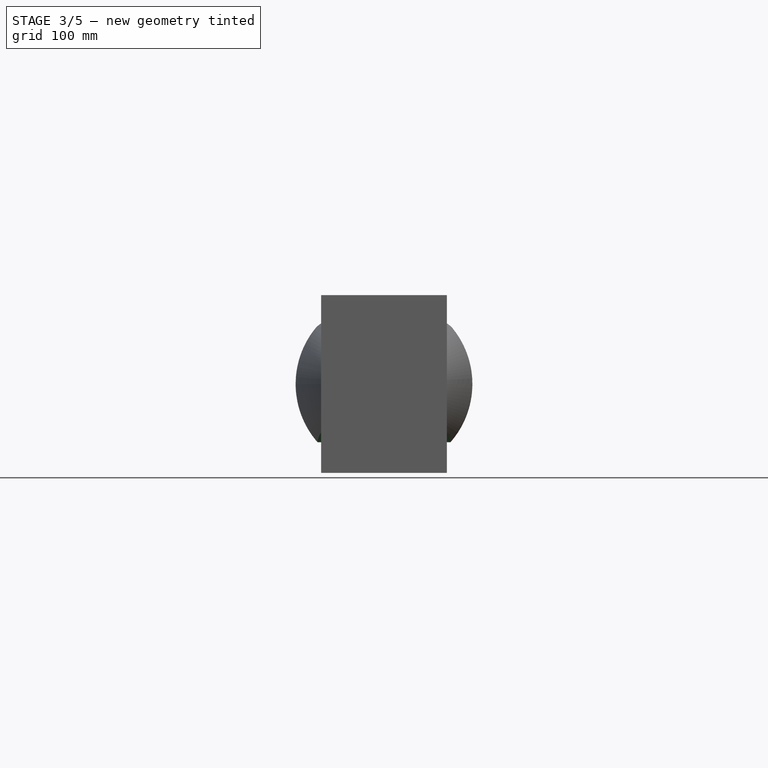
[diagram: stage 3 of 5 — front view after this stage's code; geometry added in this stage tinted green]
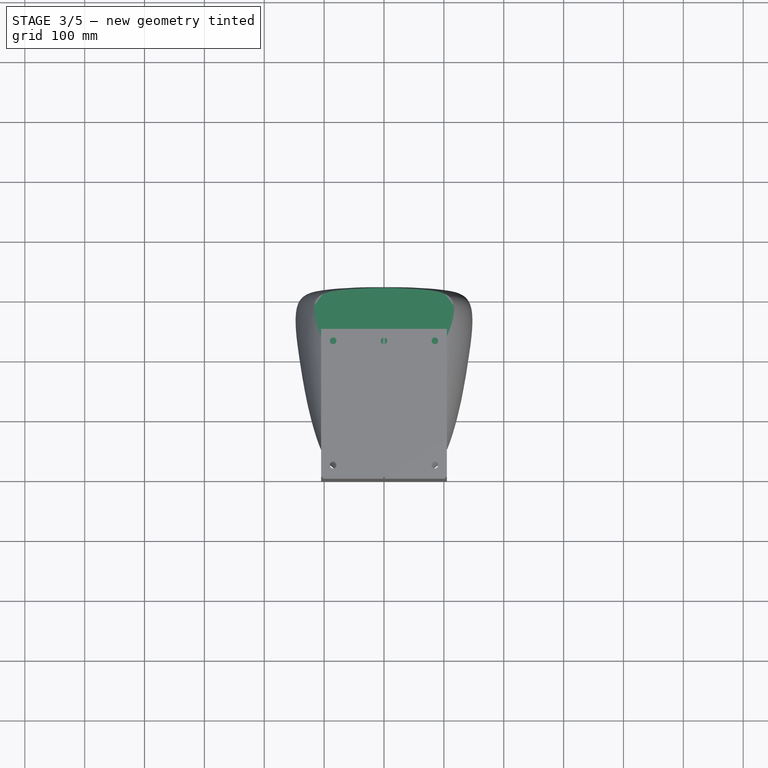
[diagram: stage 3 of 5 — top view after this stage's code; geometry added in this stage tinted green]
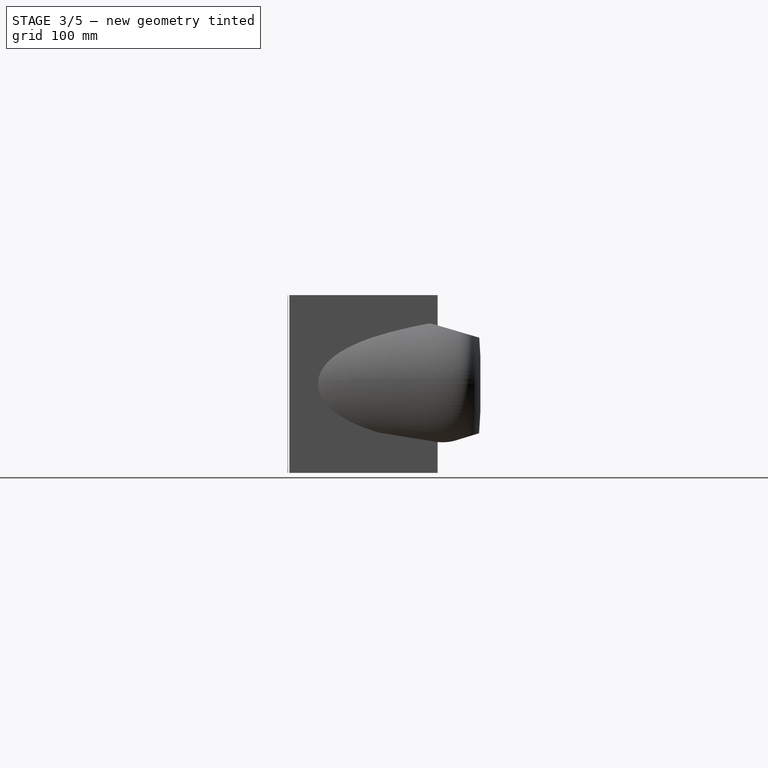
[diagram: stage 3 of 5 — right view after this stage's code; geometry added in this stage tinted green]
FEATURE [PartDesign::Body] Body019  label="Head"
  AllowCompound = false
  Group = -> [Sketch061,Revolution033,Sketch063,Groove026,Sketch064,Pocket009,Fillet027,Local_CS033]
  Origin = -> Origin021
  Placement = pos=(0,1163.06,-374.255) rot=(0,0,1;0rad)
  Tip = -> Fillet027
FEATURE [Sketcher::SketchObject] Sketch065
  ArcFitTolerance = 0
  AttachmentSupport = -> [YZ_Plane022]
  FullyConstrained = true
  MakeInternals = false
  MapMode = 5
  Placement = pos=(0,0,0) rot=(0.57735,0.57735,0.57735;2.0944rad)
  sketch-geometry (6):
    g0: LineSegment StartX=0 StartY=76.0576 StartZ=0 EndX=164.705 EndY=107.04 EndZ=0
    g1: LineSegment StartX=230.198 StartY=103.732 StartZ=0 EndX=327.121 EndY=75.1407 EndZ=0
    g2: LineSegment StartX=327.121 StartY=75.1407 StartZ=0 EndX=327.121 EndY=181.805 EndZ=0
    g3: LineSegment StartX=327.121 StartY=181.805 StartZ=0 EndX=0 EndY=181.805 EndZ=0
    g4: LineSegment StartX=0 StartY=181.805 StartZ=0 EndX=0 EndY=76.0576 EndZ=0
    g5: ArcOfCircle CenterX=190.587 CenterY=-30.5467 CenterZ=0 NormalX=0 NormalY=0 NormalZ=1 AngleXU=0 Radius=140 StartAngle=1.28394 EndAngle=1.75673
  constraints (14):
    c: Coincident(g1,g2)
    c: Vertical(g2)
    c: Coincident(g2,g3)
    c: Horizontal(g3)
    c: Coincident(g3,g4)
    c: Coincident(g4,g0)
    c: Vertical(g4)
    c: PointOnObject(g3,g-2)
    c: Tangent(g1,g5) = 1.5708
    c: Tangent(g0,g5) = 1.5708
    c: Radius(g5) = 140
    c: Block(g0)
    c: Block(g1)
    c: Block(g3)
FEATURE [PartDesign::Pocket] Pocket010  label="Front cut"
  BaseFeature = -> Revolution034
  Direction = (-1,0,0)
  Length = 5
  Length2 = 5
  Midplane = true
  Profile = -> Sketch065
  ReferenceAxis = -> Sketch065 [N_Axis]
  Suppressed = false
  Type = 1
FEATURE [Sketcher::SketchObject] Sketch066
  ArcFitTolerance = 0
  AttachmentSupport = -> [YZ_Plane022]
  FullyConstrained = true
  MakeInternals = false
  MapMode = 5
  Placement = pos=(0,0,0) rot=(0.57735,0.57735,0.57735;2.0944rad)
  sketch-geometry (8):
    g0: LineSegment StartX=0 StartY=-87.996 StartZ=0 EndX=81.1566 EndY=-77.888 EndZ=0
    g1: LineSegment StartX=139.259 StartY=-78.9913 StartZ=0 EndX=245.223 EndY=-96.2967 EndZ=0
    g2: LineSegment StartX=281.434 StartY=-93.8397 StartZ=0 EndX=341.01 EndY=-75.582 EndZ=0
    g3: LineSegment StartX=341.01 StartY=-75.582 StartZ=0 EndX=341.01 EndY=-197.004 EndZ=0
    g4: LineSegment StartX=341.01 StartY=-197.004 StartZ=0 EndX=0 EndY=-197.004 EndZ=0
    g5: LineSegment StartX=0 StartY=-197.004 StartZ=0 EndX=0 EndY=-87.996 EndZ=0
    g6: ArcOfCircle CenterX=106.373 CenterY=-280.353 CenterZ=0 NormalX=0 NormalY=0 NormalZ=1 AngleXU=0 Radius=204.029 StartAngle=1.40891 EndAngle=1.69471
    g7: ArcOfCircle CenterX=258.073 CenterY=-17.6116 CenterZ=0 NormalX=0 NormalY=0 NormalZ=1 AngleXU=0 Radius=79.7275 StartAngle=4.5505 EndAngle=5.00977
  constraints (16):
    c: Coincident(g2,g3)
    c: Coincident(g3,g4)
    c: Horizontal(g4)
    c: Coincident(g4,g5)
    c: Coincident(g5,g0)
    c: Vertical(g5)
    c: Vertical(g3)
    c: PointOnObject(g4,g-2)
    c: Tangent(g1,g6) = 1.5708
    c: Tangent(g0,g6) = 1.5708
    c: Tangent(g1,g7) = -1.5708
    c: Tangent(g2,g7) = -1.5708
    c: Block(g0)
    c: Block(g2)
    c: Block(g1)
    c: Block(g4)
FEATURE [PartDesign::Pocket] Pocket011  label="Back cut"
  BaseFeature = -> Pocket010
  Direction = (-1,0,0)
  Length = 5
  Length2 = 5
  Midplane = true
  Profile = -> Sketch066
  ReferenceAxis = -> Sketch066 [N_Axis]
  Suppressed = false
  Type = 1
FEATURE [Sketcher::SketchObject] Sketch067
  ArcFitTolerance = 0
  AttachmentSupport = -> [XY_Plane022]
  FullyConstrained = true
  MakeInternals = false
  MapMode = 5
  sketch-geometry (2):
    g0: LineSegment StartX=1.68e-14 StartY=409 StartZ=0 EndX=1.68e-14 EndY=299 EndZ=0
    g1: ArcOfCircle CenterX=0 CenterY=354 CenterZ=0 NormalX=0 NormalY=0 NormalZ=1 AngleXU=0 Radius=55 StartAngle=4.71239 EndAngle=7.85398
  constraints (7):
    c: Vertical(g0)
    c: PointOnObject(g1,g0)
    c: Coincident(g1,g0)
    c: PointOnObject(g1,g-2)
    c: Coincident(g1,g0)
    c: Radius(g1) = 55
    c: DistanceY(g-1,g1) = 354
FEATURE [PartDesign::Groove] Groove027  label="Neck cut"
  Angle = 360
  Angle2 = 60
  Axis = (0,1,0)
  Base = (0,0,0)
  BaseFeature = -> Pocket011
  Profile = -> Sketch067
  ReferenceAxis = -> Sketch067 [V_Axis]
  Suppressed = false
  Type = 0
FEATURE [PartDesign::Fillet] Fillet028  label="Neck fillet"
  Base = -> Groove027 [Edge1]
  BaseFeature = -> Groove027
  Radius = 6
  SupportTransform = false
  Suppressed = false
  UseAllEdges = false
FEATURE [Sketcher::SketchObject] Sketch068
  ArcFitTolerance = 0
  AttachmentSupport = -> [XY_Plane022]
  FullyConstrained = true
  MakeInternals = false
  MapMode = 5
  sketch-geometry (2):
    g0: LineSegment StartX=2.3e-14 StartY=75 StartZ=0 EndX=2.3e-14 EndY=-75 EndZ=0
    g1: ArcOfCircle CenterX=0 CenterY=0 CenterZ=0 NormalX=0 NormalY=0 NormalZ=1 AngleXU=0 Radius=75 StartAngle=4.71239 EndAngle=7.85398
  constraints (6):
    c: Vertical(g0)
    c: Coincident(g1,g-1)
    c: Coincident(g1,g0)
    c: Coincident(g1,g0)
    c: PointOnObject(g0,g-2)
    c: Radius(g1) = 75
FEATURE [PartDesign::Groove] Groove028  label="Waist cut"
  Angle = 360
  Angle2 = 60
  Axis = (0,1,0)
  Base = (0,0,0)
  BaseFeature = -> Fillet028
  Profile = -> Sketch068
  ReferenceAxis = -> Sketch068 [V_Axis]
  Suppressed = false
  Type = 0
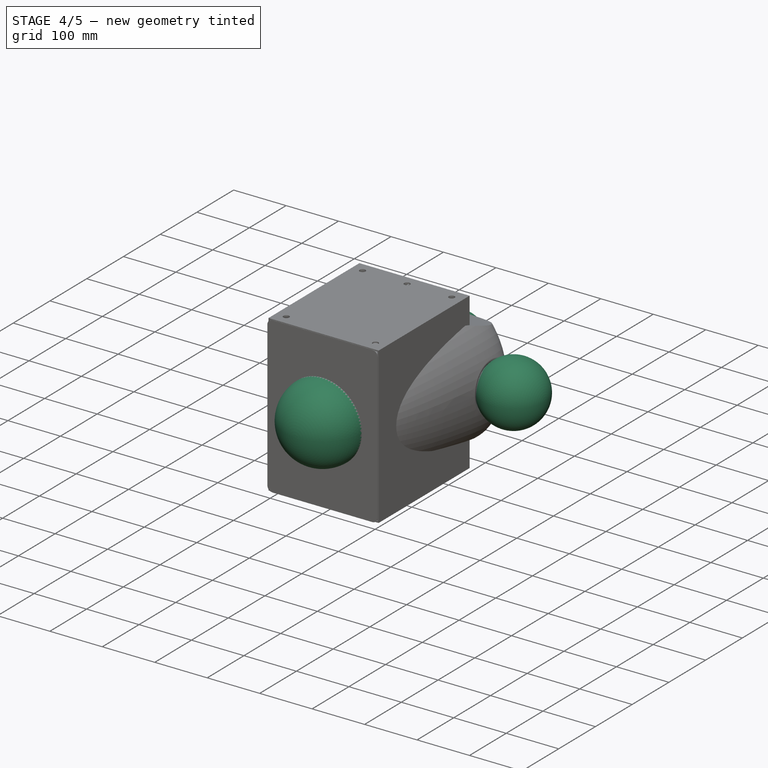
[diagram: stage 4 of 5 — iso view after this stage's code; geometry added in this stage tinted green]
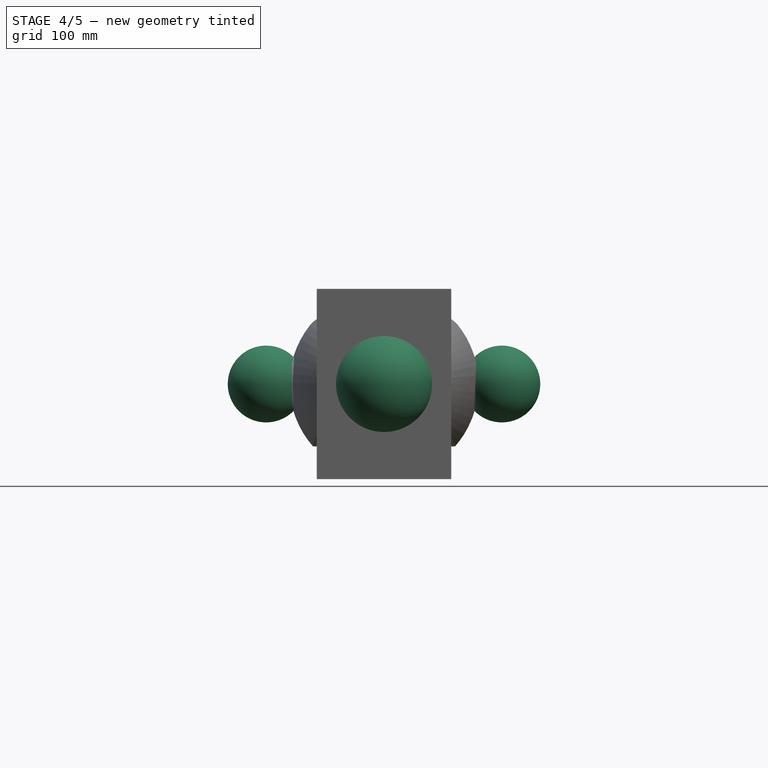
[diagram: stage 4 of 5 — front view after this stage's code; geometry added in this stage tinted green]
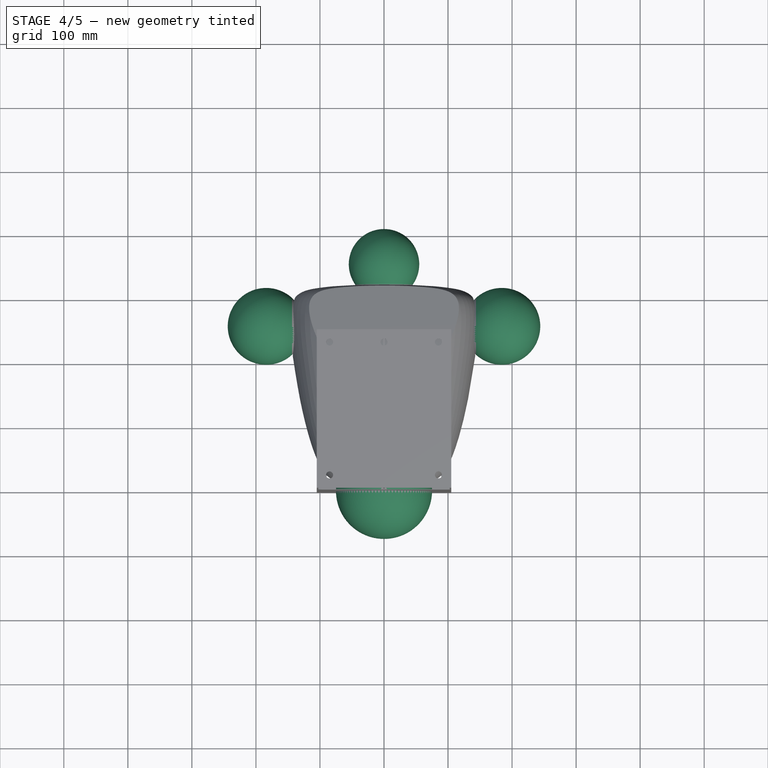
[diagram: stage 4 of 5 — top view after this stage's code; geometry added in this stage tinted green]
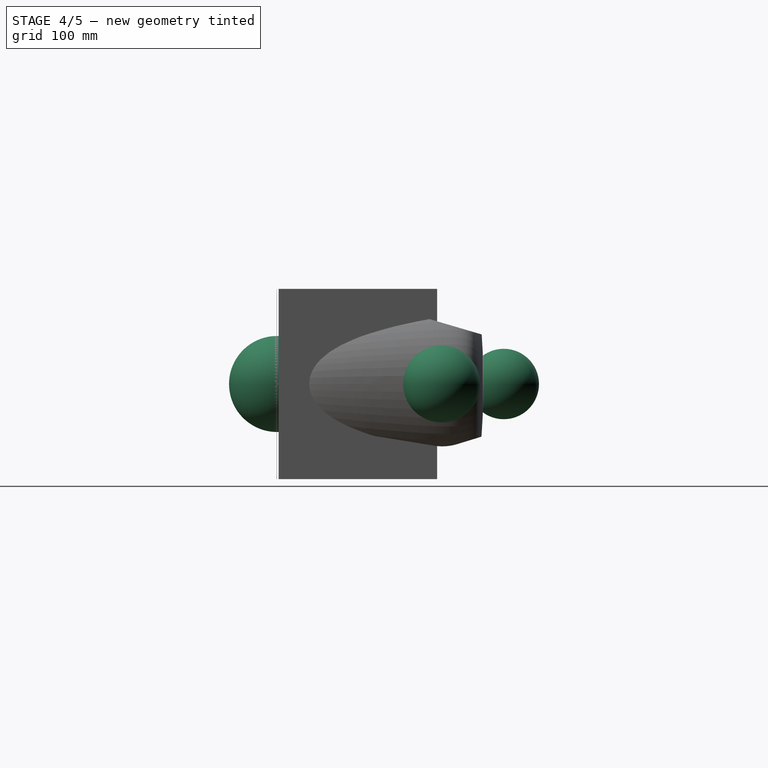
[diagram: stage 4 of 5 — right view after this stage's code; geometry added in this stage tinted green]
FEATURE [PartDesign::Fillet] Fillet029  label="Waist fillet"
  Base = -> Groove028 [Edge3]
  BaseFeature = -> Groove028
  Radius = 5
  SupportTransform = false
  Suppressed = false
  UseAllEdges = false
FEATURE [Sketcher::SketchObject] Sketch069
  ArcFitTolerance = 0
  AttachmentSupport = -> [XY_Plane022]
  FullyConstrained = true
  MakeInternals = false
  MapMode = 5
  sketch-geometry (4):
    g0: LineSegment StartX=124 StartY=257 StartZ=0 EndX=244 EndY=257 EndZ=0
    g1: ArcOfCircle CenterX=184 CenterY=257 CenterZ=0 NormalX=0 NormalY=0 NormalZ=1 AngleXU=0 Radius=60 StartAngle=0 EndAngle=3.14159
    g2: LineSegment StartX=-244 StartY=257 StartZ=0 EndX=-124 EndY=257 EndZ=0
    g3: ArcOfCircle CenterX=-184 CenterY=257 CenterZ=0 NormalX=0 NormalY=0 NormalZ=1 AngleXU=0 Radius=60 StartAngle=4e-16 EndAngle=3.14159
  constraints (14):
    c: Horizontal(g0)
    c: PointOnObject(g1,g0)
    c: Coincident(g1,g0)
    c: Coincident(g1,g0)
    c: DistanceY(g-1,g1) = 257
    c: Radius(g1) = 60
    c: DistanceX(g-1,g1) = 184
    c: Horizontal(g2)
    c: PointOnObject(g3,g2)
    c: Coincident(g3,g2)
    c: Coincident(g3,g2)
    c: Horizontal(g2,g0)
    c: Radius(g3) = 60
    c: DistanceX(g3,g-1) = 184
FEATURE [PartDesign::Groove] Groove029  label="Shoulders cut"
  Angle = 360
  Angle2 = 60
  Axis = (1,0,0)
  Base = (124,257,0)
  BaseFeature = -> Fillet029
  Profile = -> Sketch069
  ReferenceAxis = -> Sketch069 [Edge1]
  Suppressed = false
  Type = 0
FEATURE [PartDesign::Fillet] Fillet030  label="Shoulders fillet"
  Base = -> Groove029 [Edge6,Edge3,Edge12,Edge13]
  BaseFeature = -> Groove029
  Radius = 6
  SupportTransform = false
  Suppressed = false
  UseAllEdges = false
FEATURE [PartDesign::Revolution] Revolution035  label="Neck add"
  Angle = 360
  Angle2 = 60
  Axis = (0,1,0)
  Base = (0,0,0)
  BaseFeature = -> Fillet030
  Profile = -> Sketch067
  ReferenceAxis = -> Sketch067 [V_Axis]
  Reversed = true
  Suppressed = false
  Type = 0
FEATURE [PartDesign::Revolution] Revolution036  label="waist add"
  Angle = 360
  Angle2 = 60
  Axis = (0,1,0)
  Base = (0,0,0)
  BaseFeature = -> Revolution035
  Profile = -> Sketch068
  ReferenceAxis = -> Sketch068 [V_Axis]
  Reversed = true
  Suppressed = false
  Type = 0
FEATURE [PartDesign::Revolution] Revolution037  label="Shoulders"
  Angle = 360
  Angle2 = 60
  Axis = (1,0,0)
  Base = (-244,257,0)
  BaseFeature = -> Revolution036
  Profile = -> Sketch069
  ReferenceAxis = -> Sketch069 [Edge3]
  Suppressed = false
  Type = 0
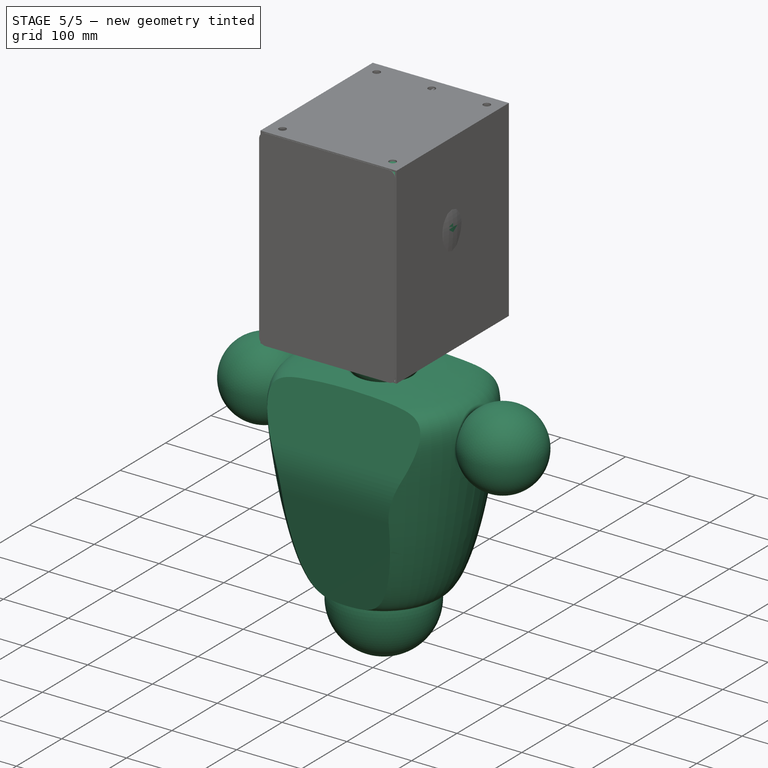
[diagram: stage 5 of 5 — iso view after this stage's code; geometry added in this stage tinted green]
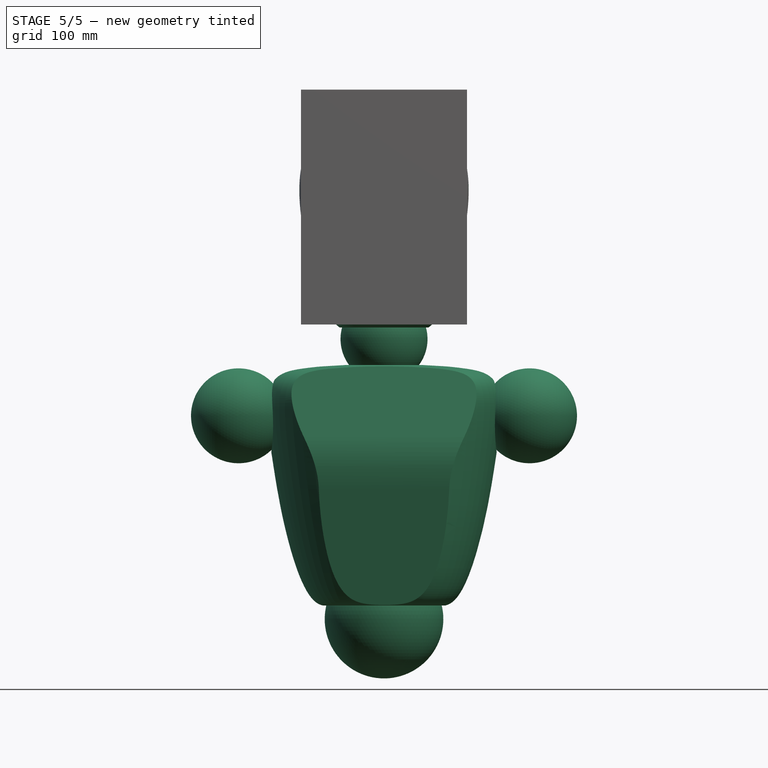
[diagram: stage 5 of 5 — front view after this stage's code; geometry added in this stage tinted green]
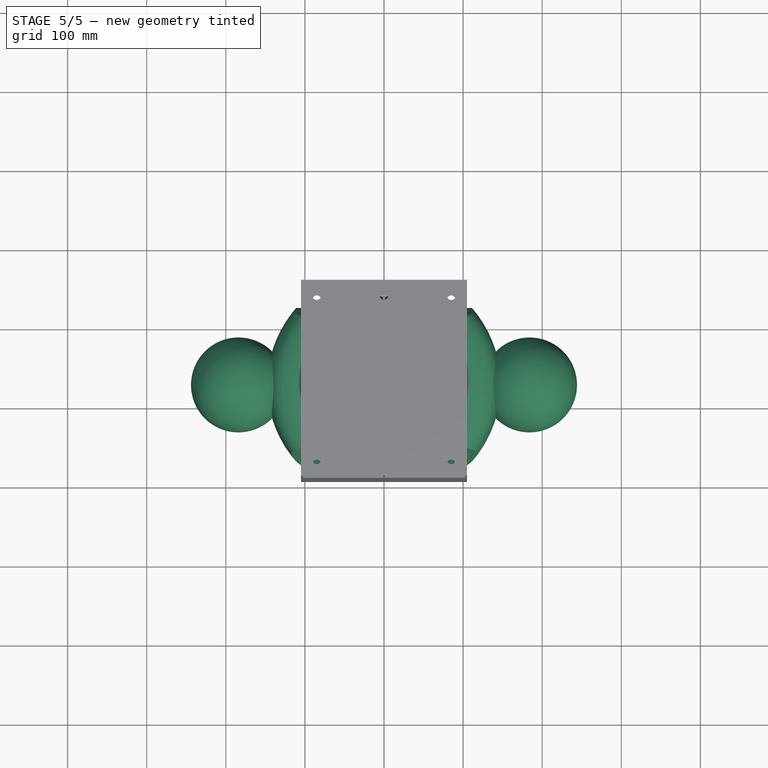
[diagram: stage 5 of 5 — top view after this stage's code; geometry added in this stage tinted green]
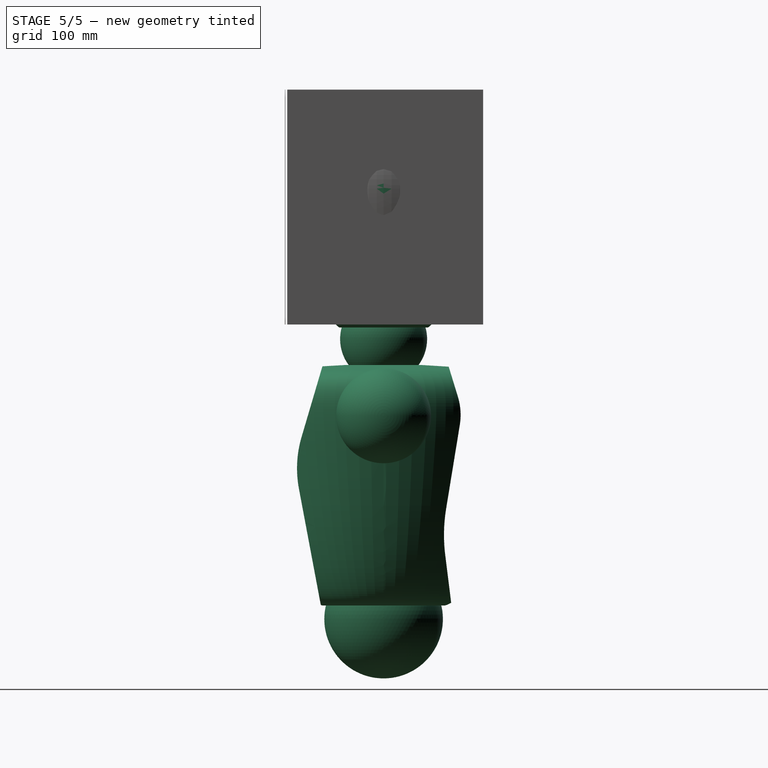
[diagram: stage 5 of 5 — right view after this stage's code; geometry added in this stage tinted green]
FEATURE [Sketcher::SketchObject] Sketch061
  ArcFitTolerance = 0
  AttachmentSupport = -> [XY_Plane021]
  FullyConstrained = true
  MakeInternals = false
  MapMode = 5
  sketch-geometry (14):
    g0: LineSegment StartX=0 StartY=0 StartZ=0 EndX=0 EndY=296.299 EndZ=0
    g1-g7: Circle [constr] x7 (B-spline internal-alignment scaffolding for g8; pole/knot coordinates omitted)
    g8: BSplineCurve PolesCount=7 KnotsCount=5 Degree=3 IsPeriodic=0
    g9-g13: GeomPoint [constr] x5 (B-spline internal-alignment scaffolding for g8; pole/knot coordinates omitted)
  constraints (12):
    c: Coincident(g0,g-1)
    c: Vertical(g0)
    c: Weight(g1) = 1
    c: Coincident(g8,g0)
    c: Equal(g1, g2-g7) x6
    c: Coincident(g8,g0)
    c: InternalAlignment(g1-g7 -> g8) x7
    c: InternalAlignment(g9-g13 -> g8) x5
    c: Horizontal(g0,g2)
    c: Horizontal(g0,g6)
    c: Block(g0)
    c: Block(g8)
FEATURE [PartDesign::Revolution] Revolution033
  Angle = 360
  Angle2 = 60
  Axis = (0,1,0)
  Base = (0,0,0)
  Profile = -> Sketch061
  ReferenceAxis = -> Sketch061 [V_Axis]
  Reversed = true
  Suppressed = false
  Type = 0
FEATURE [PartDesign::CoordinateSystem] Local_CS028  label="Chest/Neck LCS"
  AttacherType = Attacher::AttachEngine3D
  AttachmentOffset = pos=(354,0,0) rot=(0,0,1;0rad)
  AttachmentSupport = -> [Revolution034]
  MapMode = 4
  Placement = pos=(0,354,0) rot=(0.57735,0.57735,0.57735;2.0944rad)
FEATURE [PartDesign::CoordinateSystem] Local_CS029  label="Chest/Waist LCS"
  AttacherType = Attacher::AttachEngine3D
  AttachmentSupport = -> [Revolution034]
  MapMode = 2
FEATURE [PartDesign::CoordinateSystem] Local_CS030  label="Chest/Left shoulder LCS"
  AttacherType = Attacher::AttachEngine3D
  AttachmentOffset = pos=(184,257,0) rot=(0,0,1;0rad)
  AttachmentSupport = -> [Revolution034]
  MapMode = 2
  Placement = pos=(184,257,0) rot=(0,0,1;0rad)
FEATURE [PartDesign::CoordinateSystem] Local_CS031  label="Chest/Right shoulder LCS"
  AttacherType = Attacher::AttachEngine3D
  AttachmentOffset = pos=(-184,257,0) rot=(0,0,1;0rad)
  AttachmentSupport = -> [Revolution034]
  MapMode = 2
  Placement = pos=(-184,257,0) rot=(0,0,1;0rad)
FEATURE [Sketcher::SketchObject] Sketch063
  ArcFitTolerance = 0
  AttachmentSupport = -> [XY_Plane021]
  FullyConstrained = true
  MakeInternals = false
  MapMode = 5
  sketch-geometry (2):
    g0: LineSegment StartX=-1.01e-14 StartY=55 StartZ=0 EndX=-1.01e-14 EndY=-55 EndZ=0
    g1: ArcOfCircle CenterX=0 CenterY=0 CenterZ=0 NormalX=0 NormalY=0 NormalZ=1 AngleXU=0 Radius=55 StartAngle=4.71239 EndAngle=7.85398
  constraints (6):
    c: Vertical(g0)
    c: Coincident(g1,g-1)
    c: Coincident(g1,g0)
    c: Coincident(g1,g0)
    c: PointOnObject(g0,g-2)
    c: Radius(g1) = 55
FEATURE [PartDesign::Groove] Groove026
  Angle = 360
  Angle2 = 60
  Axis = (0,1,0)
  Base = (0,0,0)
  BaseFeature = -> Revolution033
  Profile = -> Sketch063
  ReferenceAxis = -> Sketch063 [V_Axis]
  Suppressed = false
  Type = 0
FEATURE [Sketcher::SketchObject] Sketch064
  ArcFitTolerance = 0
  AttachmentSupport = -> [XZ_Plane021]
  FullyConstrained = true
  MakeInternals = false
  MapMode = 5
  Placement = pos=(0,0,0) rot=(1,0,0;1.5708rad)
  sketch-geometry (5):
    g0: LineSegment StartX=-125 StartY=125 StartZ=0 EndX=125 EndY=125 EndZ=0
    g1: LineSegment StartX=125 StartY=125 StartZ=0 EndX=125 EndY=50 EndZ=0
    g2: LineSegment StartX=125 StartY=50 StartZ=0 EndX=0 EndY=75 EndZ=0
    g3: LineSegment StartX=0 StartY=75 StartZ=0 EndX=-125 EndY=50 EndZ=0
    g4: LineSegment StartX=-125 StartY=50 StartZ=0 EndX=-125 EndY=125 EndZ=0
  constraints (15):
    c: Horizontal(g0)
    c: Coincident(g0,g1)
    c: Vertical(g1)
    c: Coincident(g1,g2)
    c: Coincident(g2,g3)
    c: Coincident(g3,g4)
    c: Coincident(g4,g0)
    c: Vertical(g4)
    c: Horizontal(g3,g1)
    c: PointOnObject(g2,g-2)
    c: DistanceX(g0,g0) = 250
    c: DistanceX(g0,g-1) = 125
    c: DistanceY(g4,g4) = 75
    c: DistanceY(g-1,g2) = 75
    c: DistanceY(g-1,g0) = 125
FEATURE [PartDesign::Pocket] Pocket009
  BaseFeature = -> Groove026
  Direction = (0,1,0.05)
  Length = 300
  Length2 = 5
  Profile = -> Sketch064
  ReferenceAxis = -> Sketch064 [N_Axis]
  Suppressed = false
  Type = 0
  UseCustomVector = true
FEATURE [PartDesign::Fillet] Fillet027
  Base = -> Pocket009 [Edge3]
  BaseFeature = -> Pocket009
  Radius = 3
  SupportTransform = false
  Suppressed = false
  UseAllEdges = false
FEATURE [PartDesign::Body] Body020  label="Chest"
  AllowCompound = false
  Group = -> [Sketch062,Revolution034,Sketch065,Pocket010,Sketch066,Pocket011,Sketch067,Groove027,Fillet028,Sketch068,Groove028,Fillet029,Sketch069,Groove029,Fillet030,Revolution035,Revolution036,Revolution037,Local_CS028,Local_CS029,Local_CS030,Local_CS031]
  Origin = -> Origin022
  Placement = pos=(0,809.064,-374.255) rot=(0,0,1;0rad)
  Tip = -> Revolution037
FEATURE [Part::MultiFuse] Fusion
  Placement = pos=(0,-250,-1330) rot=(1,0,0;1.5708rad)
  Refine = true
  Shapes = -> [Body019,Body020]
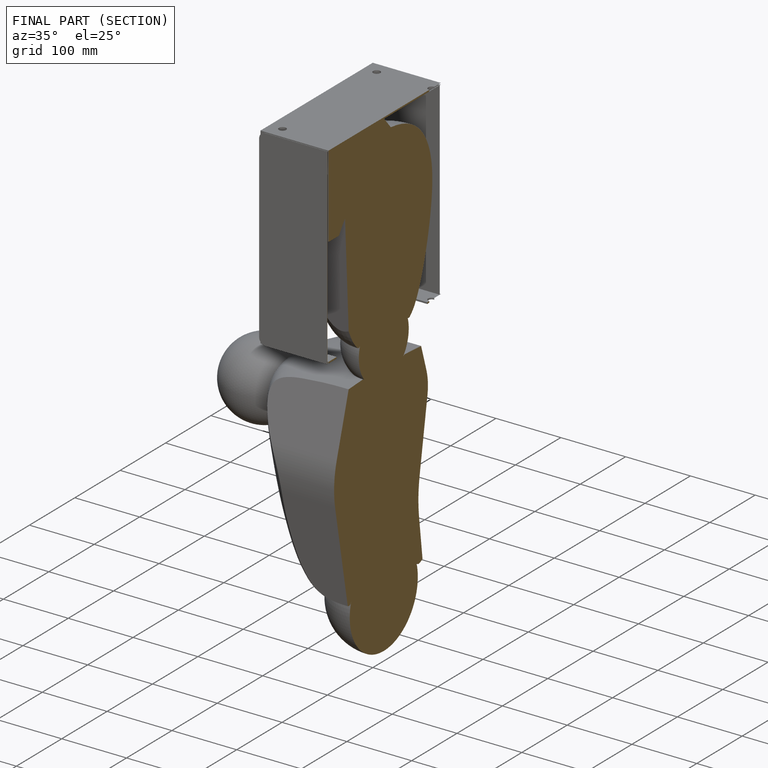
[diagram: finished part — half-section view (interior)]
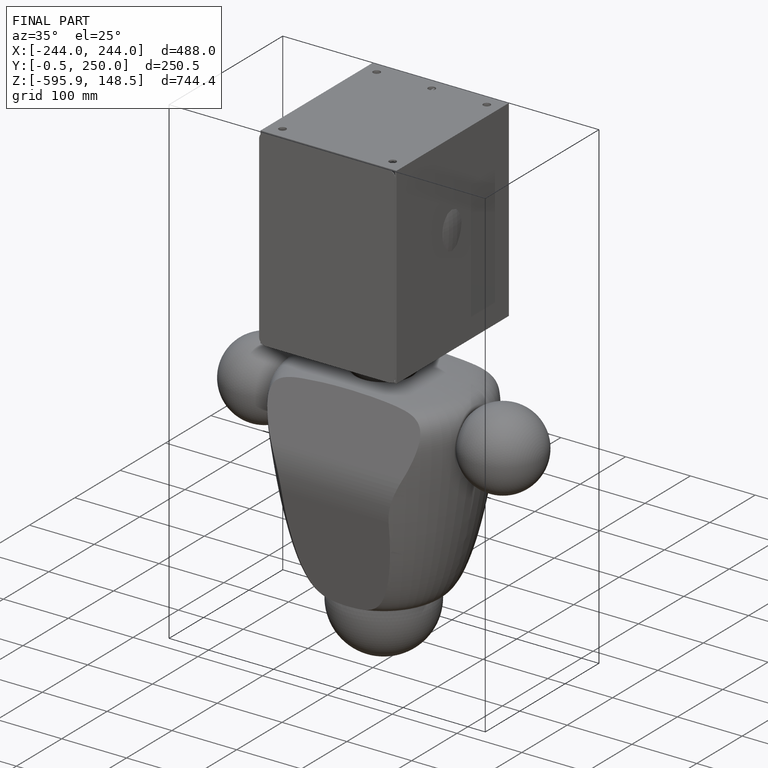
[diagram: finished part — iso view with bounding-box wireframe]
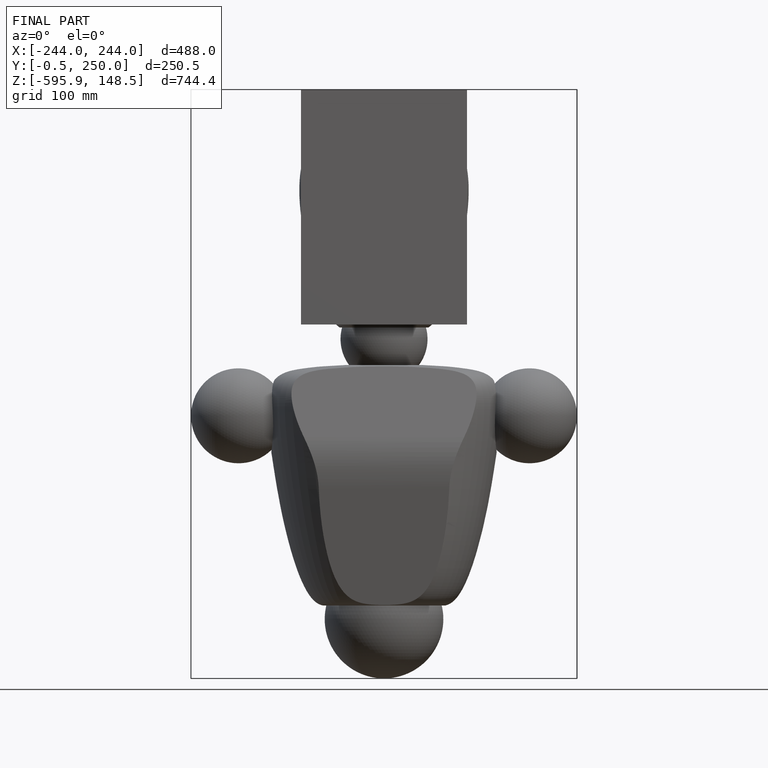
[diagram: finished part — front view with bounding-box wireframe]
